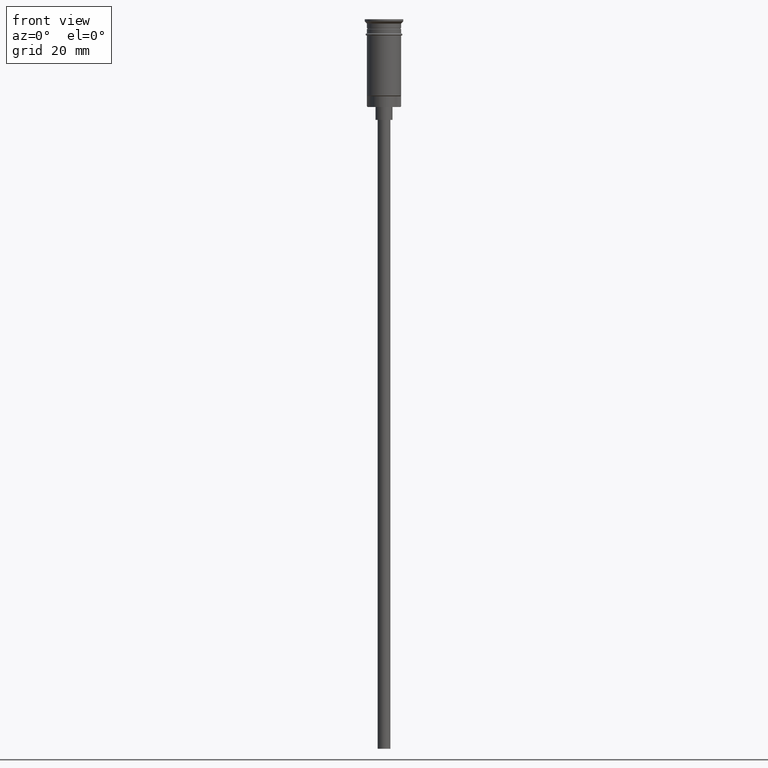
[diagram: clean part render]
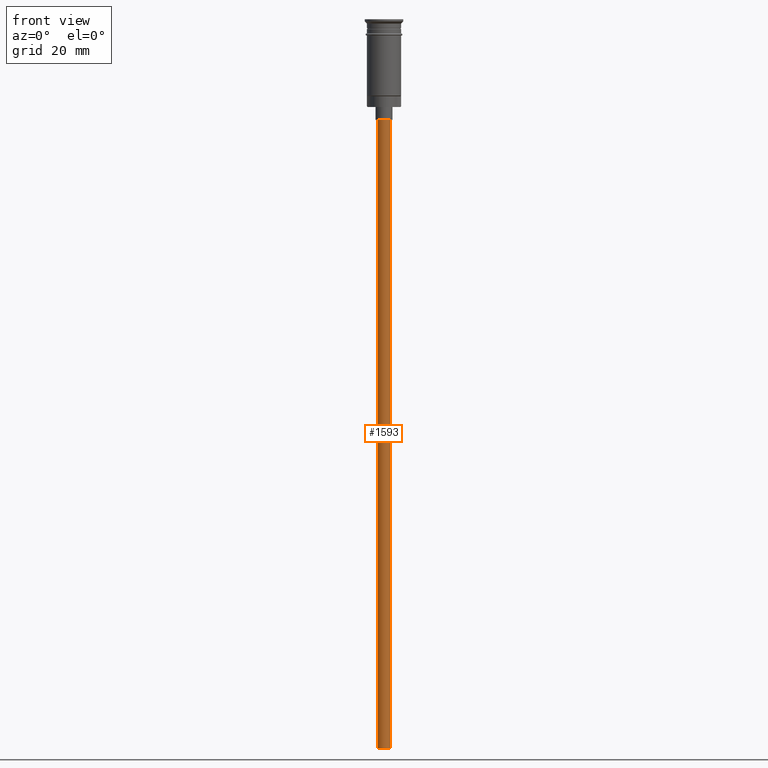
[diagram: same view with one face highlighted and labeled with its STEP entity id]
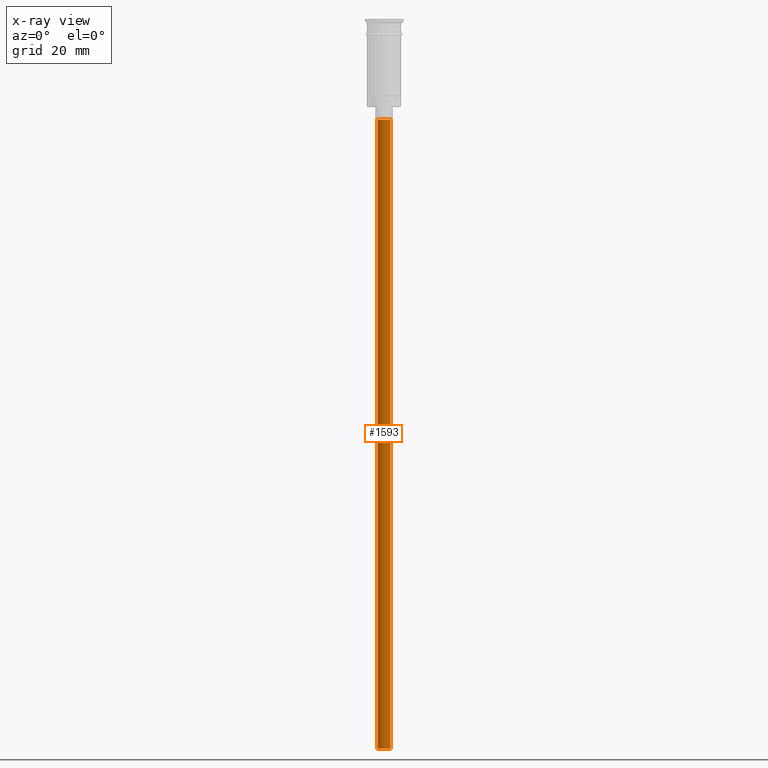
[diagram: x-ray of the same camera — body ghosted, the highlighted face saturated]
A machine part, front view. The second image highlights one B-rep face of the part: STEP entity #1593.
The next image is the same camera in x-ray: the body ghosted, the highlighted face saturated — about 0% of this face is hidden behind the body in this view.
In plain terms, the highlighted cylindrical surface (edge-blend (fillet) strip) has radius 1.5 mm, axis along (-0, -0, 1).
Its self-contained STEP definition (entity closure, byte-faithful):
#32 = AXIS2_PLACEMENT_3D ( 'NONE', #163, #398, #999 ) ;
#35 = CYLINDRICAL_SURFACE ( 'NONE', #32, 1.500000000000000222 ) ;
#48 = AXIS2_PLACEMENT_3D ( 'NONE', #941, #1439, #211 ) ;
#136 = EDGE_CURVE ( 'NONE', #1212, #992, #376, .T. ) ;
#163 = CARTESIAN_POINT ( 'NONE',  ( 0.000000000000000000, 0.000000000000000000, -170.4999999999999716 ) ) ;
#184 = AXIS2_PLACEMENT_3D ( 'NONE', #1406, #1047, #543 ) ;
#203 = CARTESIAN_POINT ( 'NONE',  ( 1.500000000000000222, 0.000000000000000000, -170.4999999999999716 ) ) ;
#211 = DIRECTION ( 'NONE',  ( -1.000000000000000000, 0.000000000000000000, 0.000000000000000000 ) ) ;
#294 = DIRECTION ( 'NONE',  ( -0.000000000000000000, -0.000000000000000000, 1.000000000000000000 ) ) ;
#351 = CARTESIAN_POINT ( 'NONE',  ( -1.500000000000000222, 1.836970198721030181E-16, -170.4999999999999716 ) ) ;
#376 = CIRCLE ( 'NONE', #48, 1.500000000000000222 ) ;
#398 = DIRECTION ( 'NONE',  ( -0.000000000000000000, -0.000000000000000000, 1.000000000000000000 ) ) ;
#453 = CARTESIAN_POINT ( 'NONE',  ( -1.500000000000000222, 1.836970198721030181E-16, -23.49999999999999645 ) ) ;
#543 = DIRECTION ( 'NONE',  ( -1.000000000000000000, 0.000000000000000000, 0.000000000000000000 ) ) ;
#588 = ORIENTED_EDGE ( 'NONE', *, *, #136, .F. ) ;
#613 = VERTEX_POINT ( 'NONE', #453 ) ;
#625 = EDGE_CURVE ( 'NONE', #992, #613, #1082, .T. ) ;
#656 = VECTOR ( 'NONE', #812, 1000.000000000000000 ) ;
#675 = LINE ( 'NONE', #203, #1277 ) ;
#798 = CIRCLE ( 'NONE', #184, 1.500000000000000222 ) ;
#812 = DIRECTION ( 'NONE',  ( -0.000000000000000000, -0.000000000000000000, 1.000000000000000000 ) ) ;
#935 = CARTESIAN_POINT ( 'NONE',  ( 1.500000000000000222, 0.000000000000000000, -23.49999999999999645 ) ) ;
#941 = CARTESIAN_POINT ( 'NONE',  ( 0.000000000000000000, 0.000000000000000000, -170.4999999999999716 ) ) ;
#974 = ORIENTED_EDGE ( 'NONE', *, *, #1387, .T. ) ;
#992 = VERTEX_POINT ( 'NONE', #351 ) ;
#999 = DIRECTION ( 'NONE',  ( 1.000000000000000000, 0.000000000000000000, 0.000000000000000000 ) ) ;
#1047 = DIRECTION ( 'NONE',  ( 0.000000000000000000, 0.000000000000000000, -1.000000000000000000 ) ) ;
#1052 = ORIENTED_EDGE ( 'NONE', *, *, #1386, .T. ) ;
#1077 = CARTESIAN_POINT ( 'NONE',  ( -1.500000000000000222, 1.836970198721030181E-16, -170.4999999999999716 ) ) ;
#1082 = LINE ( 'NONE', #1077, #656 ) ;
#1134 = FACE_OUTER_BOUND ( 'NONE', #1362, .T. ) ;
#1154 = CARTESIAN_POINT ( 'NONE',  ( 1.500000000000000222, 0.000000000000000000, -170.4999999999999716 ) ) ;
#1212 = VERTEX_POINT ( 'NONE', #1154 ) ;
#1234 = ORIENTED_EDGE ( 'NONE', *, *, #625, .F. ) ;
#1277 = VECTOR ( 'NONE', #294, 1000.000000000000000 ) ;
#1362 = EDGE_LOOP ( 'NONE', ( #1234, #588, #1052, #974 ) ) ;
#1367 = VERTEX_POINT ( 'NONE', #935 ) ;
#1386 = EDGE_CURVE ( 'NONE', #1212, #1367, #675, .T. ) ;
#1387 = EDGE_CURVE ( 'NONE', #1367, #613, #798, .T. ) ;
#1406 = CARTESIAN_POINT ( 'NONE',  ( 0.000000000000000000, 0.000000000000000000, -23.49999999999999645 ) ) ;
#1439 = DIRECTION ( 'NONE',  ( 0.000000000000000000, 0.000000000000000000, -1.000000000000000000 ) ) ;
#1593 = ADVANCED_FACE ( 'NONE', ( #1134 ), #35, .T. ) ;